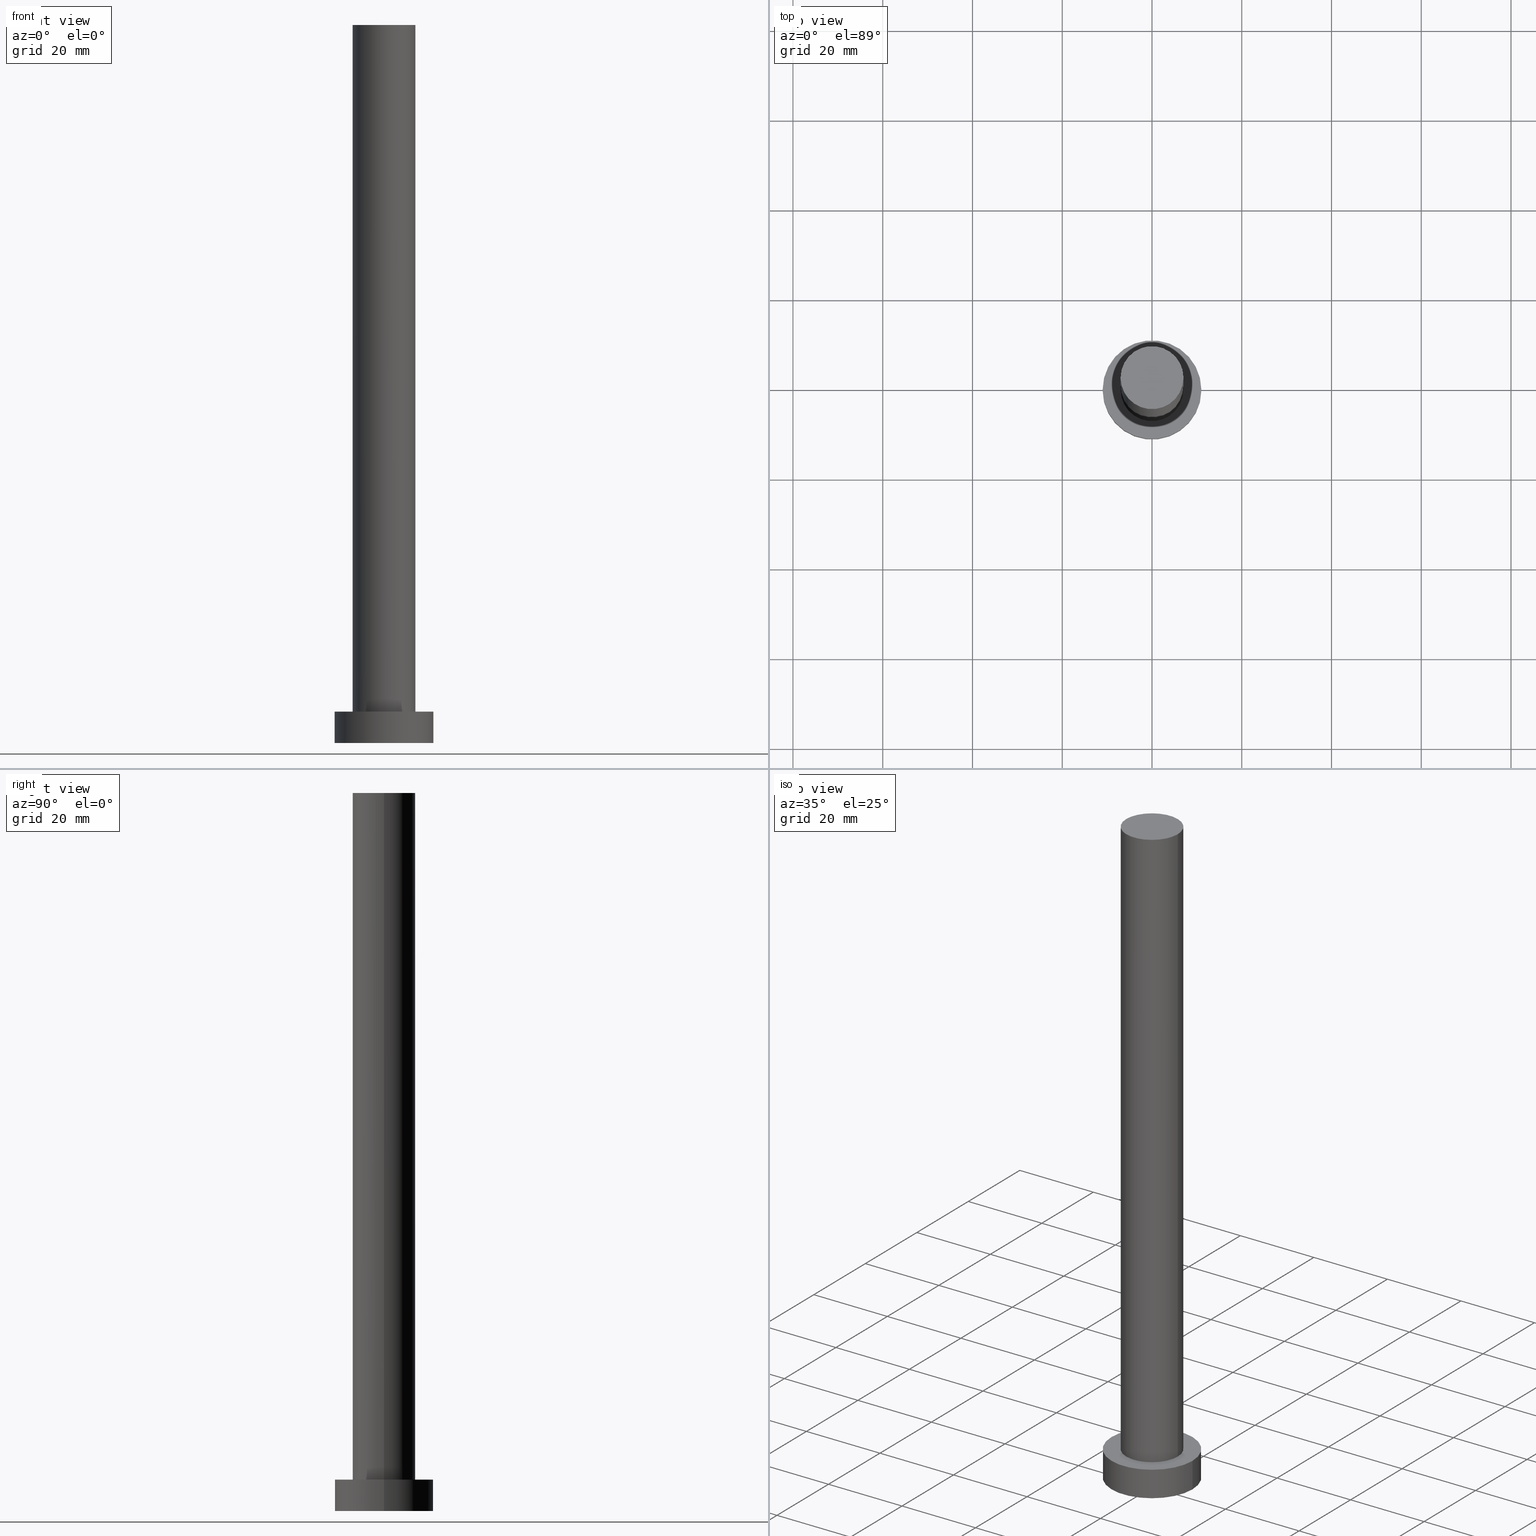
[diagram: canonical four-view strip — front | top / right | iso, engineering-drawing reading convention]
A machine part, canonical four-view strip (front | top / right | iso — engineering-drawing reading convention). The complete STEP part file that produces these views, byte-faithful:
ISO-10303-21;
HEADER;
FILE_DESCRIPTION (( 'STEP AP203' ),
    '1' );
FILE_NAME ('23f1.STEP',
    '2023-02-13T09:17:01',
    ( '' ),
    ( '' ),
    'SwSTEP 2.0',
    'SolidWorks 2019',
    '' );
FILE_SCHEMA (( 'CONFIG_CONTROL_DESIGN' ));
ENDSEC;

DATA;
#1 = CARTESIAN_POINT ( 'NONE',  ( 0.000000000000000000, 0.000000000000000000, 160.0000000000000000 ) ) ;
#2 = CYLINDRICAL_SURFACE ( 'NONE', #252, 11.00000000000000000 ) ;
#3 = CIRCLE ( 'NONE', #144, 11.00000000000000000 ) ;
#4 = DIRECTION ( 'NONE',  ( 1.000000000000000000, 0.000000000000000000, -0.000000000000000000 ) ) ;
#5 = ORIENTED_EDGE ( 'NONE', *, *, #123, .F. ) ;
#6 = AXIS2_PLACEMENT_3D ( 'NONE', #188, #166, #62 ) ;
#7 = ADVANCED_FACE ( 'NONE', ( #212 ), #32, .F. ) ;
#8 = FACE_OUTER_BOUND ( 'NONE', #185, .T. ) ;
#9 = CARTESIAN_POINT ( 'NONE',  ( 7.000000000000000000, 8.572527594031473190E-16, 7.000000000000000000 ) ) ;
#10 = ORIENTED_EDGE ( 'NONE', *, *, #74, .F. ) ;
#11 = ORGANIZATION ( 'NEUR�EN�', 'NEUR�EN�', '' ) ;
#12 = CARTESIAN_POINT ( 'NONE',  ( -11.00000000000000000, 0.000000000000000000, 7.000000000000000000 ) ) ;
#13 = MECHANICAL_CONTEXT ( 'NONE', #218, 'mechanical' ) ;
#14 = APPROVAL_DATE_TIME ( #215, #56 ) ;
#15 = CIRCLE ( 'NONE', #136, 11.00000000000000000 ) ;
#16 = AXIS2_PLACEMENT_3D ( 'NONE', #83, #162, #65 ) ;
#17 = CALENDAR_DATE ( 2023, 13, 2 ) ;
#18 = PERSON_AND_ORGANIZATION_ROLE ( 'classification_officer' ) ;
#19 = DIRECTION ( 'NONE',  ( 1.000000000000000000, 0.000000000000000000, 0.000000000000000000 ) ) ;
#20 = EDGE_CURVE ( 'NONE', #233, #209, #208, .T. ) ;
#21 = CARTESIAN_POINT ( 'NONE',  ( -7.000000000000000000, 0.000000000000000000, 160.0000000000000000 ) ) ;
#22 = CC_DESIGN_APPROVAL ( #87, ( #245 ) ) ;
#23 = DIRECTION ( 'NONE',  ( -0.000000000000000000, -0.000000000000000000, -1.000000000000000000 ) ) ;
#24 = DIRECTION ( 'NONE',  ( -0.000000000000000000, -0.000000000000000000, -1.000000000000000000 ) ) ;
#25 = VERTEX_POINT ( 'NONE', #232 ) ;
#26 = EDGE_CURVE ( 'NONE', #209, #233, #224, .T. ) ;
#27 = APPROVAL_DATE_TIME ( #47, #87 ) ;
#28 = DIRECTION ( 'NONE',  ( -1.000000000000000000, 0.000000000000000000, 0.000000000000000000 ) ) ;
#29 = VERTEX_POINT ( 'NONE', #12 ) ;
#30 = APPLICATION_CONTEXT ( 'configuration controlled 3d designs of mechanical parts and assemblies' ) ;
#31 = DIRECTION ( 'NONE',  ( 0.000000000000000000, 0.000000000000000000, 1.000000000000000000 ) ) ;
#32 = PLANE ( 'NONE',  #59 ) ;
#33 =( GEOMETRIC_REPRESENTATION_CONTEXT ( 3 ) GLOBAL_UNCERTAINTY_ASSIGNED_CONTEXT ( ( #154 ) ) GLOBAL_UNIT_ASSIGNED_CONTEXT ( ( #204, #163, #230 ) ) REPRESENTATION_CONTEXT ( 'NONE', 'WORKASPACE' ) );
#34 = CARTESIAN_POINT ( 'NONE',  ( 7.000000000000000000, 8.572527594031473190E-16, 160.0000000000000000 ) ) ;
#35 = EDGE_CURVE ( 'NONE', #95, #29, #253, .T. ) ;
#36 = FACE_OUTER_BOUND ( 'NONE', #86, .T. ) ;
#37 = LOCAL_TIME ( 10, 17, 1.000000000000000000, #223 ) ;
#38 = ADVANCED_BREP_SHAPE_REPRESENTATION ( '23f1', ( #132, #145 ), #33 ) ;
#39 = APPROVAL ( #103, 'NEUR�EN�' ) ;
#40 = COORDINATED_UNIVERSAL_TIME_OFFSET ( 1, 0, .AHEAD. ) ;
#41 = LOCAL_TIME ( 10, 17, 1.000000000000000000, #178 ) ;
#42 = CARTESIAN_POINT ( 'NONE',  ( 0.000000000000000000, 0.000000000000000000, 160.0000000000000000 ) ) ;
#43 = FACE_OUTER_BOUND ( 'NONE', #49, .T. ) ;
#44 = ORIENTED_EDGE ( 'NONE', *, *, #82, .T. ) ;
#45 = SHAPE_DEFINITION_REPRESENTATION ( #150, #38 ) ;
#46 = ORIENTED_EDGE ( 'NONE', *, *, #152, .T. ) ;
#47 = DATE_AND_TIME ( #192, #133 ) ;
#48 = AXIS2_PLACEMENT_3D ( 'NONE', #75, #54, #131 ) ;
#49 = EDGE_LOOP ( 'NONE', ( #228, #234, #125, #143 ) ) ;
#50 = ORIENTED_EDGE ( 'NONE', *, *, #35, .F. ) ;
#51 = PERSON_AND_ORGANIZATION ( #190, #11 ) ;
#52 = VERTEX_POINT ( 'NONE', #140 ) ;
#53 = PERSON_AND_ORGANIZATION ( #190, #11 ) ;
#54 = DIRECTION ( 'NONE',  ( 0.000000000000000000, 0.000000000000000000, 1.000000000000000000 ) ) ;
#55 = CC_DESIGN_SECURITY_CLASSIFICATION ( #245, ( #198 ) ) ;
#56 = APPROVAL ( #72, 'NEUR�EN�' ) ;
#57 = DIRECTION ( 'NONE',  ( 1.000000000000000000, 0.000000000000000000, -0.000000000000000000 ) ) ;
#58 = DIRECTION ( 'NONE',  ( 0.000000000000000000, 0.000000000000000000, 1.000000000000000000 ) ) ;
#59 = AXIS2_PLACEMENT_3D ( 'NONE', #191, #248, #73 ) ;
#60 = CC_DESIGN_PERSON_AND_ORGANIZATION_ASSIGNMENT ( #53, #153, ( #78 ) ) ;
#61 = CIRCLE ( 'NONE', #16, 7.000000000000000000 ) ;
#62 = DIRECTION ( 'NONE',  ( -1.000000000000000000, 0.000000000000000000, 0.000000000000000000 ) ) ;
#63 = APPROVAL_PERSON_ORGANIZATION ( #237, #39, #135 ) ;
#64 = ADVANCED_FACE ( 'NONE', ( #243 ), #2, .T. ) ;
#65 = DIRECTION ( 'NONE',  ( 1.000000000000000000, 0.000000000000000000, 0.000000000000000000 ) ) ;
#66 = CYLINDRICAL_SURFACE ( 'NONE', #6, 11.00000000000000000 ) ;
#67 = DESIGN_CONTEXT ( 'detailed design', #30, 'design' ) ;
#68 = CARTESIAN_POINT ( 'NONE',  ( 0.000000000000000000, 0.000000000000000000, 160.0000000000000000 ) ) ;
#69 = VERTEX_POINT ( 'NONE', #203 ) ;
#70 = VECTOR ( 'NONE', #104, 1000.000000000000000 ) ;
#71 = CARTESIAN_POINT ( 'NONE',  ( 7.000000000000000000, 8.572527594031473190E-16, 160.0000000000000000 ) ) ;
#72 = APPROVAL_STATUS ( 'not_yet_approved' ) ;
#73 = DIRECTION ( 'NONE',  ( 1.000000000000000000, 0.000000000000000000, -0.000000000000000000 ) ) ;
#74 = EDGE_CURVE ( 'NONE', #247, #69, #61, .T. ) ;
#75 = CARTESIAN_POINT ( 'NONE',  ( 0.000000000000000000, 0.000000000000000000, 160.0000000000000000 ) ) ;
#76 = AXIS2_PLACEMENT_3D ( 'NONE', #222, #202, #183 ) ;
#77 = LINE ( 'NONE', #79, #97 ) ;
#78 = PRODUCT ( '23f1', '23f1', '', ( #13 ) ) ;
#79 = CARTESIAN_POINT ( 'NONE',  ( 11.00000000000000000, 1.347111479062088405E-15, 7.000000000000000000 ) ) ;
#80 = DATE_AND_TIME ( #180, #41 ) ;
#81 = PLANE ( 'NONE',  #124 ) ;
#82 = EDGE_CURVE ( 'NONE', #247, #233, #213, .T. ) ;
#83 = CARTESIAN_POINT ( 'NONE',  ( 0.000000000000000000, 0.000000000000000000, 160.0000000000000000 ) ) ;
#84 = EDGE_LOOP ( 'NONE', ( #96, #149, #46, #216 ) ) ;
#85 = CARTESIAN_POINT ( 'NONE',  ( 0.000000000000000000, 0.000000000000000000, 7.000000000000000000 ) ) ;
#86 = EDGE_LOOP ( 'NONE', ( #170, #194 ) ) ;
#87 = APPROVAL ( #112, 'NEUR�EN�' ) ;
#88 = CARTESIAN_POINT ( 'NONE',  ( -7.000000000000000000, 0.000000000000000000, 7.000000000000000000 ) ) ;
#89 = EDGE_LOOP ( 'NONE', ( #5, #115 ) ) ;
#90 = VECTOR ( 'NONE', #151, 1000.000000000000000 ) ;
#91 = DIRECTION ( 'NONE',  ( 0.000000000000000000, 0.000000000000000000, 1.000000000000000000 ) ) ;
#92 = COORDINATED_UNIVERSAL_TIME_OFFSET ( 1, 0, .AHEAD. ) ;
#93 = DIRECTION ( 'NONE',  ( 0.000000000000000000, 0.000000000000000000, 1.000000000000000000 ) ) ;
#94 = APPLICATION_PROTOCOL_DEFINITION ( 'international standard', 'config_control_design', 1994, #30 ) ;
#95 = VERTEX_POINT ( 'NONE', #130 ) ;
#96 = ORIENTED_EDGE ( 'NONE', *, *, #116, .F. ) ;
#97 = VECTOR ( 'NONE', #102, 1000.000000000000000 ) ;
#98 = EDGE_CURVE ( 'NONE', #25, #52, #3, .T. ) ;
#99 = DIRECTION ( 'NONE',  ( 1.000000000000000000, 0.000000000000000000, 0.000000000000000000 ) ) ;
#100 = AXIS2_PLACEMENT_3D ( 'NONE', #165, #93, #240 ) ;
#101 = PERSON_AND_ORGANIZATION ( #190, #11 ) ;
#102 = DIRECTION ( 'NONE',  ( -0.000000000000000000, -0.000000000000000000, -1.000000000000000000 ) ) ;
#103 = APPROVAL_STATUS ( 'not_yet_approved' ) ;
#104 = DIRECTION ( 'NONE',  ( -0.000000000000000000, -0.000000000000000000, -1.000000000000000000 ) ) ;
#105 = DATE_AND_TIME ( #17, #37 ) ;
#106 = LOCAL_TIME ( 10, 17, 1.000000000000000000, #40 ) ;
#107 = EDGE_CURVE ( 'NONE', #69, #247, #139, .T. ) ;
#108 = CYLINDRICAL_SURFACE ( 'NONE', #207, 7.000000000000000000 ) ;
#109 = VECTOR ( 'NONE', #255, 1000.000000000000000 ) ;
#110 = ADVANCED_FACE ( 'NONE', ( #219, #36 ), #199, .T. ) ;
#111 = EDGE_LOOP ( 'NONE', ( #50, #128, #231, #167 ) ) ;
#112 = APPROVAL_STATUS ( 'not_yet_approved' ) ;
#113 = AXIS2_PLACEMENT_3D ( 'NONE', #85, #31, #211 ) ;
#114 = CIRCLE ( 'NONE', #181, 11.00000000000000000 ) ;
#115 = ORIENTED_EDGE ( 'NONE', *, *, #98, .F. ) ;
#116 = EDGE_CURVE ( 'NONE', #95, #25, #77, .T. ) ;
#117 = PRODUCT_RELATED_PRODUCT_CATEGORY ( 'detail', '', ( #78 ) ) ;
#118 = PERSON_AND_ORGANIZATION_ROLE ( 'creator' ) ;
#119 = APPROVAL_DATE_TIME ( #160, #39 ) ;
#120 = LINE ( 'NONE', #21, #70 ) ;
#121 = DIRECTION ( 'NONE',  ( 1.000000000000000000, 0.000000000000000000, 0.000000000000000000 ) ) ;
#122 = DIRECTION ( 'NONE',  ( -1.000000000000000000, 0.000000000000000000, 0.000000000000000000 ) ) ;
#123 = EDGE_CURVE ( 'NONE', #52, #25, #15, .T. ) ;
#124 = AXIS2_PLACEMENT_3D ( 'NONE', #68, #246, #4 ) ;
#125 = ORIENTED_EDGE ( 'NONE', *, *, #142, .T. ) ;
#126 = ORIENTED_EDGE ( 'NONE', *, *, #26, .F. ) ;
#127 = APPROVAL_ROLE ( '' ) ;
#128 = ORIENTED_EDGE ( 'NONE', *, *, #116, .T. ) ;
#129 = ORIENTED_EDGE ( 'NONE', *, *, #142, .F. ) ;
#130 = CARTESIAN_POINT ( 'NONE',  ( 11.00000000000000000, 1.347111479062088405E-15, 7.000000000000000000 ) ) ;
#131 = DIRECTION ( 'NONE',  ( 1.000000000000000000, 0.000000000000000000, 0.000000000000000000 ) ) ;
#132 = MANIFOLD_SOLID_BREP ( 'P�idat vysunut�m3', #155 ) ;
#133 = LOCAL_TIME ( 10, 17, 1.000000000000000000, #92 ) ;
#134 = LINE ( 'NONE', #221, #109 ) ;
#135 = APPROVAL_ROLE ( '' ) ;
#136 = AXIS2_PLACEMENT_3D ( 'NONE', #197, #238, #19 ) ;
#137 = SECURITY_CLASSIFICATION_LEVEL ( 'unclassified' ) ;
#138 = CALENDAR_DATE ( 2023, 13, 2 ) ;
#139 = CIRCLE ( 'NONE', #48, 7.000000000000000000 ) ;
#140 = CARTESIAN_POINT ( 'NONE',  ( -11.00000000000000000, 0.000000000000000000, 0.000000000000000000 ) ) ;
#141 = PERSON_AND_ORGANIZATION_ROLE ( 'design_supplier' ) ;
#142 = EDGE_CURVE ( 'NONE', #69, #209, #120, .T. ) ;
#143 = ORIENTED_EDGE ( 'NONE', *, *, #26, .T. ) ;
#144 = AXIS2_PLACEMENT_3D ( 'NONE', #195, #174, #250 ) ;
#145 = AXIS2_PLACEMENT_3D ( 'NONE', #227, #91, #121 ) ;
#146 = CYLINDRICAL_SURFACE ( 'NONE', #254, 7.000000000000000000 ) ;
#147 = ORIENTED_EDGE ( 'NONE', *, *, #74, .T. ) ;
#148 = EDGE_CURVE ( 'NONE', #29, #95, #114, .T. ) ;
#149 = ORIENTED_EDGE ( 'NONE', *, *, #148, .F. ) ;
#150 = PRODUCT_DEFINITION_SHAPE ( 'NONE', 'NONE',  #193 ) ;
#151 = DIRECTION ( 'NONE',  ( -0.000000000000000000, -0.000000000000000000, -1.000000000000000000 ) ) ;
#152 = EDGE_CURVE ( 'NONE', #29, #52, #134, .T. ) ;
#153 = PERSON_AND_ORGANIZATION_ROLE ( 'design_owner' ) ;
#154 = UNCERTAINTY_MEASURE_WITH_UNIT (LENGTH_MEASURE( 1.000000000000000082E-05 ), #204, 'distance_accuracy_value', 'NONE');
#155 = CLOSED_SHELL ( 'NONE', ( #235, #200, #64, #110, #7, #242, #161 ) ) ;
#156 = DATE_TIME_ROLE ( 'creation_date' ) ;
#157 = CC_DESIGN_PERSON_AND_ORGANIZATION_ASSIGNMENT ( #101, #18, ( #245 ) ) ;
#158 = FACE_OUTER_BOUND ( 'NONE', #164, .T. ) ;
#159 = CARTESIAN_POINT ( 'NONE',  ( 0.000000000000000000, 0.000000000000000000, 7.000000000000000000 ) ) ;
#160 = DATE_AND_TIME ( #138, #106 ) ;
#161 = ADVANCED_FACE ( 'NONE', ( #158 ), #81, .T. ) ;
#162 = DIRECTION ( 'NONE',  ( 0.000000000000000000, 0.000000000000000000, 1.000000000000000000 ) ) ;
#163 =( NAMED_UNIT ( * ) PLANE_ANGLE_UNIT ( ) SI_UNIT ( $, .RADIAN. ) );
#164 = EDGE_LOOP ( 'NONE', ( #244, #147 ) ) ;
#165 = CARTESIAN_POINT ( 'NONE',  ( 0.000000000000000000, 0.000000000000000000, 7.000000000000000000 ) ) ;
#166 = DIRECTION ( 'NONE',  ( -0.000000000000000000, -0.000000000000000000, -1.000000000000000000 ) ) ;
#167 = ORIENTED_EDGE ( 'NONE', *, *, #152, .F. ) ;
#168 = CC_DESIGN_APPROVAL ( #56, ( #193 ) ) ;
#169 = DIRECTION ( 'NONE',  ( -1.000000000000000000, 0.000000000000000000, 0.000000000000000000 ) ) ;
#170 = ORIENTED_EDGE ( 'NONE', *, *, #148, .T. ) ;
#171 = APPROVAL_ROLE ( '' ) ;
#172 = ORIENTED_EDGE ( 'NONE', *, *, #20, .F. ) ;
#173 = AXIS2_PLACEMENT_3D ( 'NONE', #159, #58, #57 ) ;
#174 = DIRECTION ( 'NONE',  ( 0.000000000000000000, 0.000000000000000000, 1.000000000000000000 ) ) ;
#175 = COORDINATED_UNIVERSAL_TIME_OFFSET ( 1, 0, .AHEAD. ) ;
#176 = APPROVAL_PERSON_ORGANIZATION ( #51, #56, #171 ) ;
#177 = DIRECTION ( 'NONE',  ( 0.000000000000000000, 0.000000000000000000, 1.000000000000000000 ) ) ;
#178 = COORDINATED_UNIVERSAL_TIME_OFFSET ( 1, 0, .AHEAD. ) ;
#179 = CC_DESIGN_PERSON_AND_ORGANIZATION_ASSIGNMENT ( #241, #141, ( #198 ) ) ;
#180 = CALENDAR_DATE ( 2023, 13, 2 ) ;
#181 = AXIS2_PLACEMENT_3D ( 'NONE', #182, #177, #99 ) ;
#182 = CARTESIAN_POINT ( 'NONE',  ( 0.000000000000000000, 0.000000000000000000, 7.000000000000000000 ) ) ;
#183 = DIRECTION ( 'NONE',  ( 1.000000000000000000, 0.000000000000000000, 0.000000000000000000 ) ) ;
#184 = APPLICATION_PROTOCOL_DEFINITION ( 'international standard', 'config_control_design', 1994, #218 ) ;
#185 = EDGE_LOOP ( 'NONE', ( #10, #44, #189, #129 ) ) ;
#186 = APPROVAL_PERSON_ORGANIZATION ( #205, #87, #127 ) ;
#187 = DIRECTION ( 'NONE',  ( -0.000000000000000000, -0.000000000000000000, -1.000000000000000000 ) ) ;
#188 = CARTESIAN_POINT ( 'NONE',  ( 0.000000000000000000, 0.000000000000000000, 7.000000000000000000 ) ) ;
#189 = ORIENTED_EDGE ( 'NONE', *, *, #20, .T. ) ;
#190 = PERSON ( 'NEUR�EN�', 'NEUR�EN�', 'NEUR�EN�', ('NEUR�EN�'), ('NEUR�EN�'), ('NEUR�EN�') ) ;
#191 = CARTESIAN_POINT ( 'NONE',  ( 0.000000000000000000, 0.000000000000000000, 0.000000000000000000 ) ) ;
#192 = CALENDAR_DATE ( 2023, 13, 2 ) ;
#193 = PRODUCT_DEFINITION ( 'NEZN�M�', '', #198, #67 ) ;
#194 = ORIENTED_EDGE ( 'NONE', *, *, #35, .T. ) ;
#195 = CARTESIAN_POINT ( 'NONE',  ( 0.000000000000000000, 0.000000000000000000, 0.000000000000000000 ) ) ;
#196 = PERSON_AND_ORGANIZATION ( #190, #11 ) ;
#197 = CARTESIAN_POINT ( 'NONE',  ( 0.000000000000000000, 0.000000000000000000, 0.000000000000000000 ) ) ;
#198 = PRODUCT_DEFINITION_FORMATION_WITH_SPECIFIED_SOURCE ( 'LIBOVOLN�', '', #78, .NOT_KNOWN. ) ;
#199 = PLANE ( 'NONE',  #173 ) ;
#200 = ADVANCED_FACE ( 'NONE', ( #206 ), #66, .T. ) ;
#201 = PERSON_AND_ORGANIZATION_ROLE ( 'creator' ) ;
#202 = DIRECTION ( 'NONE',  ( 0.000000000000000000, 0.000000000000000000, 1.000000000000000000 ) ) ;
#203 = CARTESIAN_POINT ( 'NONE',  ( -7.000000000000000000, 0.000000000000000000, 160.0000000000000000 ) ) ;
#204 =( LENGTH_UNIT ( ) NAMED_UNIT ( * ) SI_UNIT ( .MILLI., .METRE. ) );
#205 = PERSON_AND_ORGANIZATION ( #190, #11 ) ;
#206 = FACE_OUTER_BOUND ( 'NONE', #111, .T. ) ;
#207 = AXIS2_PLACEMENT_3D ( 'NONE', #42, #23, #169 ) ;
#208 = CIRCLE ( 'NONE', #76, 7.000000000000000000 ) ;
#209 = VERTEX_POINT ( 'NONE', #88 ) ;
#210 = DATE_TIME_ROLE ( 'classification_date' ) ;
#211 = DIRECTION ( 'NONE',  ( 1.000000000000000000, 0.000000000000000000, 0.000000000000000000 ) ) ;
#212 = FACE_OUTER_BOUND ( 'NONE', #89, .T. ) ;
#213 = LINE ( 'NONE', #34, #90 ) ;
#214 = CC_DESIGN_APPROVAL ( #39, ( #198 ) ) ;
#215 = DATE_AND_TIME ( #217, #220 ) ;
#216 = ORIENTED_EDGE ( 'NONE', *, *, #123, .T. ) ;
#217 = CALENDAR_DATE ( 2023, 13, 2 ) ;
#218 = APPLICATION_CONTEXT ( 'configuration controlled 3d designs of mechanical parts and assemblies' ) ;
#219 = FACE_BOUND ( 'NONE', #249, .T. ) ;
#220 = LOCAL_TIME ( 10, 17, 1.000000000000000000, #175 ) ;
#221 = CARTESIAN_POINT ( 'NONE',  ( -11.00000000000000000, 0.000000000000000000, 7.000000000000000000 ) ) ;
#222 = CARTESIAN_POINT ( 'NONE',  ( 0.000000000000000000, 0.000000000000000000, 7.000000000000000000 ) ) ;
#223 = COORDINATED_UNIVERSAL_TIME_OFFSET ( 1, 0, .AHEAD. ) ;
#224 = CIRCLE ( 'NONE', #113, 7.000000000000000000 ) ;
#225 = CC_DESIGN_PERSON_AND_ORGANIZATION_ASSIGNMENT ( #196, #118, ( #193 ) ) ;
#226 = CARTESIAN_POINT ( 'NONE',  ( 0.000000000000000000, 0.000000000000000000, 7.000000000000000000 ) ) ;
#227 = CARTESIAN_POINT ( 'NONE',  ( 0.000000000000000000, 0.000000000000000000, 0.000000000000000000 ) ) ;
#228 = ORIENTED_EDGE ( 'NONE', *, *, #82, .F. ) ;
#229 = CC_DESIGN_PERSON_AND_ORGANIZATION_ASSIGNMENT ( #239, #201, ( #198 ) ) ;
#230 =( NAMED_UNIT ( * ) SI_UNIT ( $, .STERADIAN. ) SOLID_ANGLE_UNIT ( ) );
#231 = ORIENTED_EDGE ( 'NONE', *, *, #98, .T. ) ;
#232 = CARTESIAN_POINT ( 'NONE',  ( 11.00000000000000000, 1.347111479062088405E-15, 0.000000000000000000 ) ) ;
#233 = VERTEX_POINT ( 'NONE', #9 ) ;
#234 = ORIENTED_EDGE ( 'NONE', *, *, #107, .F. ) ;
#235 = ADVANCED_FACE ( 'NONE', ( #8 ), #108, .T. ) ;
#236 = CC_DESIGN_DATE_AND_TIME_ASSIGNMENT ( #80, #210, ( #245 ) ) ;
#237 = PERSON_AND_ORGANIZATION ( #190, #11 ) ;
#238 = DIRECTION ( 'NONE',  ( 0.000000000000000000, 0.000000000000000000, 1.000000000000000000 ) ) ;
#239 = PERSON_AND_ORGANIZATION ( #190, #11 ) ;
#240 = DIRECTION ( 'NONE',  ( 1.000000000000000000, 0.000000000000000000, 0.000000000000000000 ) ) ;
#241 = PERSON_AND_ORGANIZATION ( #190, #11 ) ;
#242 = ADVANCED_FACE ( 'NONE', ( #43 ), #146, .T. ) ;
#243 = FACE_OUTER_BOUND ( 'NONE', #84, .T. ) ;
#244 = ORIENTED_EDGE ( 'NONE', *, *, #107, .T. ) ;
#245 = SECURITY_CLASSIFICATION ( '', '', #137 ) ;
#246 = DIRECTION ( 'NONE',  ( 0.000000000000000000, 0.000000000000000000, 1.000000000000000000 ) ) ;
#247 = VERTEX_POINT ( 'NONE', #71 ) ;
#248 = DIRECTION ( 'NONE',  ( 0.000000000000000000, 0.000000000000000000, 1.000000000000000000 ) ) ;
#249 = EDGE_LOOP ( 'NONE', ( #126, #172 ) ) ;
#250 = DIRECTION ( 'NONE',  ( 1.000000000000000000, 0.000000000000000000, 0.000000000000000000 ) ) ;
#251 = CC_DESIGN_DATE_AND_TIME_ASSIGNMENT ( #105, #156, ( #193 ) ) ;
#252 = AXIS2_PLACEMENT_3D ( 'NONE', #226, #24, #122 ) ;
#253 = CIRCLE ( 'NONE', #100, 11.00000000000000000 ) ;
#254 = AXIS2_PLACEMENT_3D ( 'NONE', #1, #187, #28 ) ;
#255 = DIRECTION ( 'NONE',  ( -0.000000000000000000, -0.000000000000000000, -1.000000000000000000 ) ) ;
ENDSEC;
END-ISO-10303-21;
